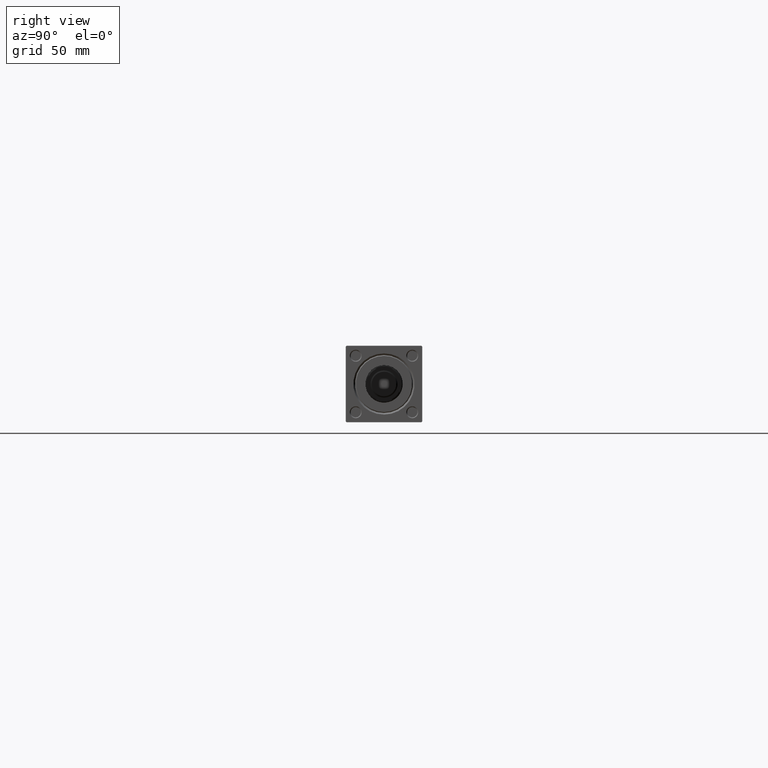
[diagram: clean part render]
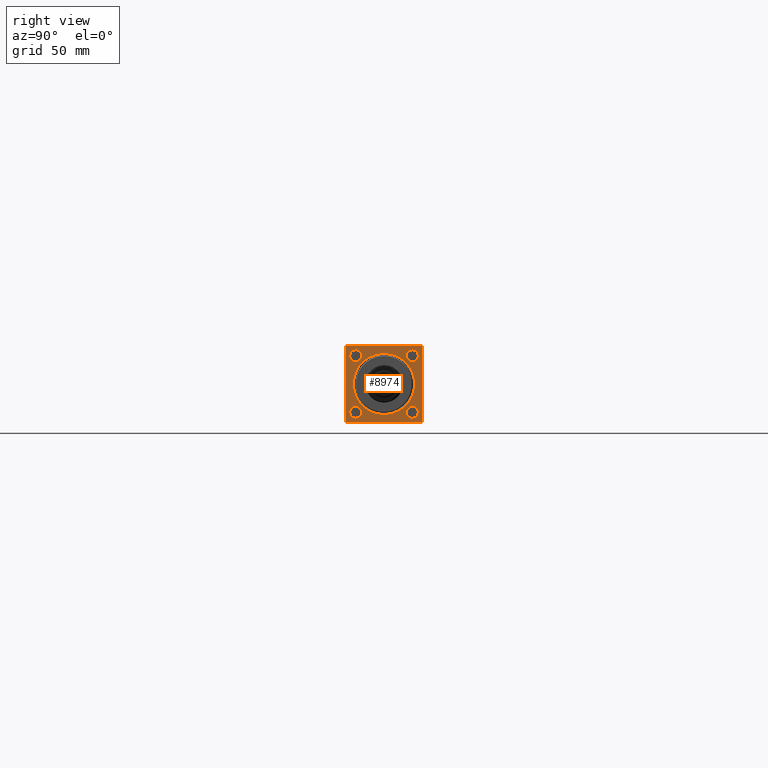
[diagram: same view with one face highlighted and labeled with its STEP entity id]
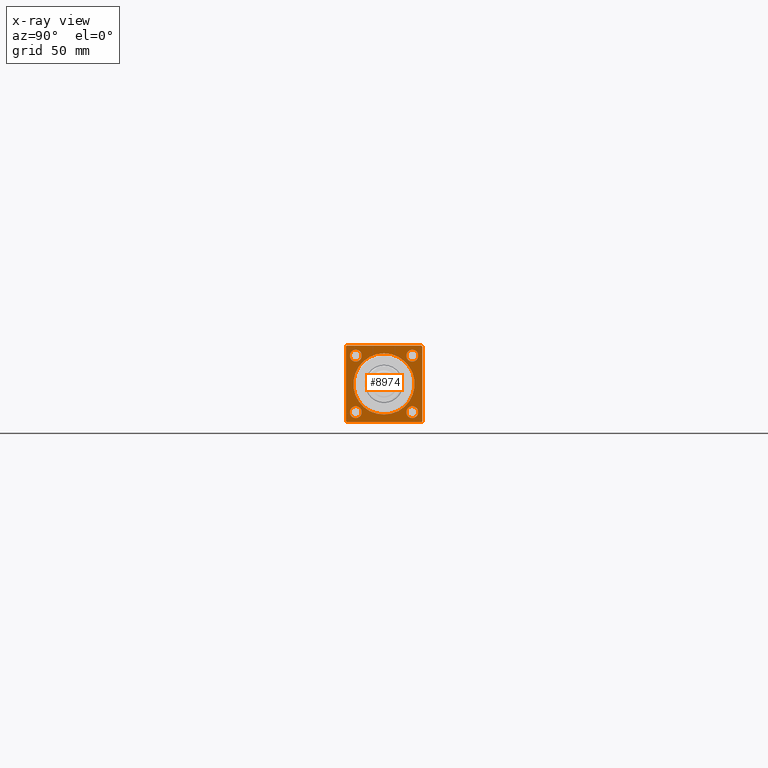
[diagram: x-ray of the same camera — body ghosted, the highlighted face saturated]
A machine part, right view. The second image highlights one B-rep face of the part: STEP entity #8974.
The next image is the same camera in x-ray: the body ghosted, the highlighted face saturated — about 0% of this face is hidden behind the body in this view.
In plain terms, the highlighted planar face has unit normal (-1, 0, 0).
Its self-contained STEP definition (entity closure, byte-faithful):
#181 = CARTESIAN_POINT ( 'NONE',  ( 403.0000000000000000, 0.000000000000000000, 0.000000000000000000 ) ) ;
#447 = ORIENTED_EDGE ( 'NONE', *, *, #3507, .T. ) ;
#938 = DIRECTION ( 'NONE',  ( -1.000000000000000000, 0.000000000000000000, -0.000000000000000000 ) ) ;
#1076 = VERTEX_POINT ( 'NONE', #22524 ) ;
#1213 = CIRCLE ( 'NONE', #44706, 3.500000000000003109 ) ;
#1392 = EDGE_LOOP ( 'NONE', ( #17116, #42911 ) ) ;
#1884 = DIRECTION ( 'NONE',  ( -1.000000000000000000, 0.000000000000000000, -0.000000000000000000 ) ) ;
#1900 = VECTOR ( 'NONE', #14948, 1000.000000000000000 ) ;
#3265 = VERTEX_POINT ( 'NONE', #20444 ) ;
#3507 = EDGE_CURVE ( 'NONE', #30432, #28409, #32263, .T. ) ;
#3794 = EDGE_LOOP ( 'NONE', ( #447, #42254 ) ) ;
#3905 = ORIENTED_EDGE ( 'NONE', *, *, #12901, .T. ) ;
#5288 = CARTESIAN_POINT ( 'NONE',  ( 403.0000000000000000, -16.60000000000000497, -16.60000000000000497 ) ) ;
#6432 = VERTEX_POINT ( 'NONE', #41841 ) ;
#6765 = VERTEX_POINT ( 'NONE', #9074 ) ;
#7961 = CARTESIAN_POINT ( 'NONE',  ( 403.0000000000000000, -21.99999999999992539, -22.50000000000000000 ) ) ;
#8652 = FACE_BOUND ( 'NONE', #23508, .T. ) ;
#8734 = CIRCLE ( 'NONE', #30056, 3.500000000000003109 ) ;
#8974 = ADVANCED_FACE ( 'NONE', ( #46933, #8652, #38980, #11737, #34890, #31033 ), #47688, .F. ) ;
#9074 = CARTESIAN_POINT ( 'NONE',  ( 403.0000000000000000, -16.59999999999999787, 13.09999999999999432 ) ) ;
#9898 = CARTESIAN_POINT ( 'NONE',  ( 403.0000000000000000, -21.99999999999992539, 22.49999999999999289 ) ) ;
#10038 = VERTEX_POINT ( 'NONE', #14136 ) ;
#10108 = CARTESIAN_POINT ( 'NONE',  ( 403.0000000000000000, 16.59999999999999787, -16.60000000000000497 ) ) ;
#10333 = ORIENTED_EDGE ( 'NONE', *, *, #34079, .T. ) ;
#10493 = CARTESIAN_POINT ( 'NONE',  ( 403.0000000000000000, 22.00000000000000355, -22.49999999999999645 ) ) ;
#10563 = ORIENTED_EDGE ( 'NONE', *, *, #21758, .T. ) ;
#10653 = VERTEX_POINT ( 'NONE', #37512 ) ;
#10720 = DIRECTION ( 'NONE',  ( 0.000000000000000000, 0.000000000000000000, 1.000000000000000000 ) ) ;
#10949 = VERTEX_POINT ( 'NONE', #25900 ) ;
#11488 = EDGE_CURVE ( 'NONE', #3265, #46735, #1213, .T. ) ;
#11604 = DIRECTION ( 'NONE',  ( 0.000000000000000000, 0.000000000000000000, 1.000000000000000000 ) ) ;
#11688 = EDGE_LOOP ( 'NONE', ( #3905, #45470 ) ) ;
#11737 = FACE_BOUND ( 'NONE', #3794, .T. ) ;
#12373 = LINE ( 'NONE', #38868, #21244 ) ;
#12901 = EDGE_CURVE ( 'NONE', #6432, #10949, #29985, .T. ) ;
#13106 = DIRECTION ( 'NONE',  ( 0.000000000000000000, -0.7071067811865474617, 0.7071067811865474617 ) ) ;
#13275 = AXIS2_PLACEMENT_3D ( 'NONE', #18940, #46162, #10720 ) ;
#13576 = DIRECTION ( 'NONE',  ( -1.000000000000000000, 0.000000000000000000, -0.000000000000000000 ) ) ;
#13684 = DIRECTION ( 'NONE',  ( 0.000000000000000000, 0.000000000000000000, 1.000000000000000000 ) ) ;
#14136 = CARTESIAN_POINT ( 'NONE',  ( 403.0000000000000000, -22.49999999999999645, 21.99999999999987921 ) ) ;
#14330 = EDGE_CURVE ( 'NONE', #10949, #6432, #8734, .T. ) ;
#14704 = CIRCLE ( 'NONE', #33587, 3.500000000000003109 ) ;
#14738 = AXIS2_PLACEMENT_3D ( 'NONE', #50737, #50236, #15530 ) ;
#14948 = DIRECTION ( 'NONE',  ( 0.000000000000000000, -1.000000000000000000, -7.709882115452476934E-17 ) ) ;
#15028 = CARTESIAN_POINT ( 'NONE',  ( 403.0000000000000000, -16.60000000000000497, -16.60000000000000497 ) ) ;
#15517 = EDGE_CURVE ( 'NONE', #42174, #24594, #36660, .T. ) ;
#15530 = DIRECTION ( 'NONE',  ( 0.000000000000000000, 0.000000000000000000, 1.000000000000000000 ) ) ;
#15996 = CARTESIAN_POINT ( 'NONE',  ( 403.0000000000000000, 2.204364238465237794E-15, 18.00000000000001421 ) ) ;
#16024 = AXIS2_PLACEMENT_3D ( 'NONE', #15028, #19417, #46130 ) ;
#16370 = VERTEX_POINT ( 'NONE', #17409 ) ;
#16392 = CARTESIAN_POINT ( 'NONE',  ( 403.0000000000000000, 22.00000000000000355, 22.50000000000000355 ) ) ;
#16637 = EDGE_CURVE ( 'NONE', #10038, #10653, #19946, .T. ) ;
#17116 = ORIENTED_EDGE ( 'NONE', *, *, #15517, .T. ) ;
#17409 = CARTESIAN_POINT ( 'NONE',  ( 403.0000000000000000, 22.50000000000000355, -21.99999999999998224 ) ) ;
#17555 = DIRECTION ( 'NONE',  ( 0.000000000000000000, 0.000000000000000000, 1.000000000000000000 ) ) ;
#17804 = DIRECTION ( 'NONE',  ( -1.000000000000000000, 0.000000000000000000, -0.000000000000000000 ) ) ;
#17927 = EDGE_CURVE ( 'NONE', #28409, #30432, #27687, .T. ) ;
#17966 = VECTOR ( 'NONE', #21942, 1000.000000000000000 ) ;
#18627 = LINE ( 'NONE', #37891, #34021 ) ;
#18940 = CARTESIAN_POINT ( 'NONE',  ( 403.0000000000000000, -16.59999999999999787, 16.59999999999999787 ) ) ;
#19417 = DIRECTION ( 'NONE',  ( -1.000000000000000000, 0.000000000000000000, -0.000000000000000000 ) ) ;
#19946 = LINE ( 'NONE', #32278, #36687 ) ;
#19963 = DIRECTION ( 'NONE',  ( -1.000000000000000000, 0.000000000000000000, -0.000000000000000000 ) ) ;
#20173 = VERTEX_POINT ( 'NONE', #9898 ) ;
#20324 = AXIS2_PLACEMENT_3D ( 'NONE', #10108, #17804, #13684 ) ;
#20333 = CARTESIAN_POINT ( 'NONE',  ( 403.0000000000000000, 16.59999999999999787, 13.10000000000000142 ) ) ;
#20444 = CARTESIAN_POINT ( 'NONE',  ( 403.0000000000000000, 16.59999999999999787, 20.10000000000000853 ) ) ;
#21161 = CARTESIAN_POINT ( 'NONE',  ( 403.0000000000000000, 0.000000000000000000, 0.000000000000000000 ) ) ;
#21174 = DIRECTION ( 'NONE',  ( 0.000000000000000000, 0.000000000000000000, 1.000000000000000000 ) ) ;
#21244 = VECTOR ( 'NONE', #27047, 1000.000000000000114 ) ;
#21301 = DIRECTION ( 'NONE',  ( 0.000000000000000000, 0.000000000000000000, 1.000000000000000000 ) ) ;
#21431 = EDGE_LOOP ( 'NONE', ( #40079, #47563, #35777, #36741, #22548, #23197, #10563, #33450 ) ) ;
#21459 = EDGE_CURVE ( 'NONE', #20173, #10038, #34596, .T. ) ;
#21669 = EDGE_CURVE ( 'NONE', #46735, #3265, #26983, .T. ) ;
#21758 = EDGE_CURVE ( 'NONE', #26337, #20173, #31116, .T. ) ;
#21911 = CARTESIAN_POINT ( 'NONE',  ( 403.0000000000000000, 22.50000000000000355, -22.49999999999999645 ) ) ;
#21942 = DIRECTION ( 'NONE',  ( 0.000000000000000000, -1.000000000000000000, -2.312964634635742957E-16 ) ) ;
#22050 = EDGE_LOOP ( 'NONE', ( #34965, #33455 ) ) ;
#22524 = CARTESIAN_POINT ( 'NONE',  ( 403.0000000000000000, 22.50000000000000355, 22.00000000000000355 ) ) ;
#22548 = ORIENTED_EDGE ( 'NONE', *, *, #49993, .F. ) ;
#23197 = ORIENTED_EDGE ( 'NONE', *, *, #25962, .T. ) ;
#23508 = EDGE_LOOP ( 'NONE', ( #37817, #10333 ) ) ;
#24417 = LINE ( 'NONE', #48305, #44255 ) ;
#24594 = VERTEX_POINT ( 'NONE', #15996 ) ;
#25240 = EDGE_CURVE ( 'NONE', #10653, #47045, #42854, .T. ) ;
#25900 = CARTESIAN_POINT ( 'NONE',  ( 403.0000000000000000, -16.60000000000000497, -13.10000000000000142 ) ) ;
#25962 = EDGE_CURVE ( 'NONE', #1076, #26337, #24417, .T. ) ;
#26337 = VERTEX_POINT ( 'NONE', #16392 ) ;
#26980 = VECTOR ( 'NONE', #30811, 1000.000000000000000 ) ;
#26983 = CIRCLE ( 'NONE', #45881, 3.500000000000003109 ) ;
#27047 = DIRECTION ( 'NONE',  ( -0.000000000000000000, 0.7071067811865474617, 0.7071067811865474617 ) ) ;
#27664 = DIRECTION ( 'NONE',  ( 0.000000000000000000, 0.000000000000000000, 1.000000000000000000 ) ) ;
#27687 = CIRCLE ( 'NONE', #20324, 3.500000000000003109 ) ;
#28409 = VERTEX_POINT ( 'NONE', #46843 ) ;
#29145 = DIRECTION ( 'NONE',  ( -1.000000000000000000, 0.000000000000000000, -0.000000000000000000 ) ) ;
#29985 = CIRCLE ( 'NONE', #16024, 3.500000000000003109 ) ;
#30056 = AXIS2_PLACEMENT_3D ( 'NONE', #5288, #938, #27664 ) ;
#30139 = LINE ( 'NONE', #21911, #1900 ) ;
#30432 = VERTEX_POINT ( 'NONE', #43056 ) ;
#30811 = DIRECTION ( 'NONE',  ( 0.000000000000000000, 0.7071067811865426878, -0.7071067811865524577 ) ) ;
#31033 = FACE_OUTER_BOUND ( 'NONE', #21431, .T. ) ;
#31116 = LINE ( 'NONE', #46761, #17966 ) ;
#31894 = VERTEX_POINT ( 'NONE', #10493 ) ;
#32263 = CIRCLE ( 'NONE', #48672, 3.500000000000003109 ) ;
#32278 = CARTESIAN_POINT ( 'NONE',  ( 403.0000000000000000, -22.49999999999999645, 22.49999999999999289 ) ) ;
#32754 = CARTESIAN_POINT ( 'NONE',  ( 403.0000000000000000, 16.59999999999999787, 16.60000000000000497 ) ) ;
#33450 = ORIENTED_EDGE ( 'NONE', *, *, #21459, .T. ) ;
#33455 = ORIENTED_EDGE ( 'NONE', *, *, #11488, .T. ) ;
#33576 = EDGE_CURVE ( 'NONE', #31894, #16370, #12373, .T. ) ;
#33587 = AXIS2_PLACEMENT_3D ( 'NONE', #40821, #13576, #21301 ) ;
#33996 = DIRECTION ( 'NONE',  ( 0.000000000000000000, 0.000000000000000000, 1.000000000000000000 ) ) ;
#34021 = VECTOR ( 'NONE', #50454, 1000.000000000000000 ) ;
#34079 = EDGE_CURVE ( 'NONE', #46447, #6765, #14704, .T. ) ;
#34091 = CARTESIAN_POINT ( 'NONE',  ( 403.0000000000000000, -22.49999999999999645, 21.99999999999987921 ) ) ;
#34209 = AXIS2_PLACEMENT_3D ( 'NONE', #21161, #1884, #17555 ) ;
#34316 = CARTESIAN_POINT ( 'NONE',  ( 403.0000000000000000, -16.59999999999999787, 20.10000000000000142 ) ) ;
#34596 = LINE ( 'NONE', #34091, #38475 ) ;
#34890 = FACE_BOUND ( 'NONE', #1392, .T. ) ;
#34965 = ORIENTED_EDGE ( 'NONE', *, *, #21669, .T. ) ;
#35208 = EDGE_CURVE ( 'NONE', #24594, #42174, #36916, .T. ) ;
#35256 = CARTESIAN_POINT ( 'NONE',  ( 403.0000000000000000, 16.59999999999999787, 16.60000000000000497 ) ) ;
#35448 = CIRCLE ( 'NONE', #13275, 3.500000000000003109 ) ;
#35777 = ORIENTED_EDGE ( 'NONE', *, *, #46690, .F. ) ;
#36336 = CARTESIAN_POINT ( 'NONE',  ( 403.0000000000000000, 0.000000000000000000, -18.00000000000001421 ) ) ;
#36660 = CIRCLE ( 'NONE', #34209, 18.00000000000001421 ) ;
#36687 = VECTOR ( 'NONE', #47932, 1000.000000000000000 ) ;
#36741 = ORIENTED_EDGE ( 'NONE', *, *, #33576, .T. ) ;
#36916 = CIRCLE ( 'NONE', #14738, 18.00000000000001421 ) ;
#37320 = CARTESIAN_POINT ( 'NONE',  ( 403.0000000000000000, 16.59999999999999787, -16.60000000000000497 ) ) ;
#37512 = CARTESIAN_POINT ( 'NONE',  ( 403.0000000000000000, -22.49999999999999645, -21.99999999999992184 ) ) ;
#37817 = ORIENTED_EDGE ( 'NONE', *, *, #40449, .T. ) ;
#37891 = CARTESIAN_POINT ( 'NONE',  ( 403.0000000000000000, 22.50000000000000355, 22.50000000000000355 ) ) ;
#38475 = VECTOR ( 'NONE', #50241, 1000.000000000000000 ) ;
#38868 = CARTESIAN_POINT ( 'NONE',  ( 403.0000000000000000, 22.50000000000000355, -21.99999999999999645 ) ) ;
#38980 = FACE_BOUND ( 'NONE', #11688, .T. ) ;
#40079 = ORIENTED_EDGE ( 'NONE', *, *, #16637, .T. ) ;
#40449 = EDGE_CURVE ( 'NONE', #6765, #46447, #35448, .T. ) ;
#40821 = CARTESIAN_POINT ( 'NONE',  ( 403.0000000000000000, -16.59999999999999787, 16.59999999999999787 ) ) ;
#41420 = DIRECTION ( 'NONE',  ( -1.000000000000000000, 0.000000000000000000, -0.000000000000000000 ) ) ;
#41841 = CARTESIAN_POINT ( 'NONE',  ( 403.0000000000000000, -16.60000000000000497, -20.10000000000000853 ) ) ;
#42174 = VERTEX_POINT ( 'NONE', #36336 ) ;
#42254 = ORIENTED_EDGE ( 'NONE', *, *, #17927, .T. ) ;
#42288 = AXIS2_PLACEMENT_3D ( 'NONE', #181, #19963, #43330 ) ;
#42854 = LINE ( 'NONE', #50314, #26980 ) ;
#42911 = ORIENTED_EDGE ( 'NONE', *, *, #35208, .T. ) ;
#43056 = CARTESIAN_POINT ( 'NONE',  ( 403.0000000000000000, 16.59999999999999787, -20.10000000000000853 ) ) ;
#43196 = DIRECTION ( 'NONE',  ( -1.000000000000000000, 0.000000000000000000, -0.000000000000000000 ) ) ;
#43330 = DIRECTION ( 'NONE',  ( -0.000000000000000000, 0.000000000000000000, 1.000000000000000000 ) ) ;
#44255 = VECTOR ( 'NONE', #13106, 1000.000000000000114 ) ;
#44706 = AXIS2_PLACEMENT_3D ( 'NONE', #35256, #43196, #11604 ) ;
#45470 = ORIENTED_EDGE ( 'NONE', *, *, #14330, .T. ) ;
#45881 = AXIS2_PLACEMENT_3D ( 'NONE', #32754, #29145, #21174 ) ;
#46130 = DIRECTION ( 'NONE',  ( 0.000000000000000000, 0.000000000000000000, 1.000000000000000000 ) ) ;
#46162 = DIRECTION ( 'NONE',  ( -1.000000000000000000, 0.000000000000000000, -0.000000000000000000 ) ) ;
#46447 = VERTEX_POINT ( 'NONE', #34316 ) ;
#46690 = EDGE_CURVE ( 'NONE', #31894, #47045, #30139, .T. ) ;
#46735 = VERTEX_POINT ( 'NONE', #20333 ) ;
#46761 = CARTESIAN_POINT ( 'NONE',  ( 403.0000000000000000, 22.50000000000000355, 22.50000000000000355 ) ) ;
#46843 = CARTESIAN_POINT ( 'NONE',  ( 403.0000000000000000, 16.59999999999999787, -13.10000000000000142 ) ) ;
#46933 = FACE_BOUND ( 'NONE', #22050, .T. ) ;
#47045 = VERTEX_POINT ( 'NONE', #7961 ) ;
#47563 = ORIENTED_EDGE ( 'NONE', *, *, #25240, .T. ) ;
#47688 = PLANE ( 'NONE',  #42288 ) ;
#47932 = DIRECTION ( 'NONE',  ( 0.000000000000000000, 0.000000000000000000, -1.000000000000000000 ) ) ;
#48305 = CARTESIAN_POINT ( 'NONE',  ( 403.0000000000000000, 22.00000000000000355, 22.50000000000000355 ) ) ;
#48672 = AXIS2_PLACEMENT_3D ( 'NONE', #37320, #41420, #33996 ) ;
#49993 = EDGE_CURVE ( 'NONE', #1076, #16370, #18627, .T. ) ;
#50236 = DIRECTION ( 'NONE',  ( -1.000000000000000000, 0.000000000000000000, -0.000000000000000000 ) ) ;
#50241 = DIRECTION ( 'NONE',  ( -0.000000000000000000, -0.7071067811865081598, -0.7071067811865867636 ) ) ;
#50314 = CARTESIAN_POINT ( 'NONE',  ( 403.0000000000000000, -21.99999999999993960, -22.50000000000000000 ) ) ;
#50454 = DIRECTION ( 'NONE',  ( 0.000000000000000000, 0.000000000000000000, -1.000000000000000000 ) ) ;
#50737 = CARTESIAN_POINT ( 'NONE',  ( 403.0000000000000000, 0.000000000000000000, 0.000000000000000000 ) ) ;